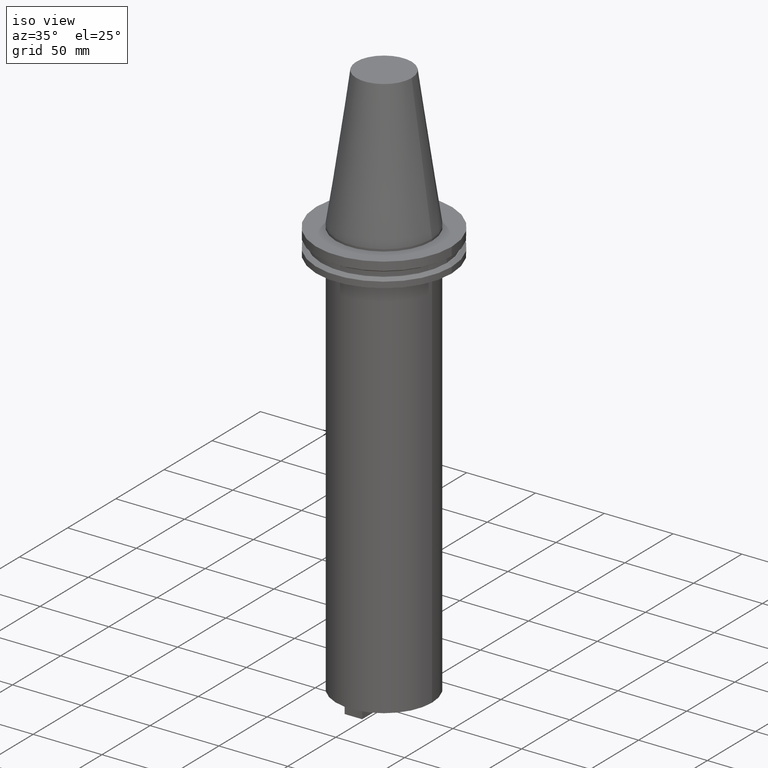
[diagram: clean part render]
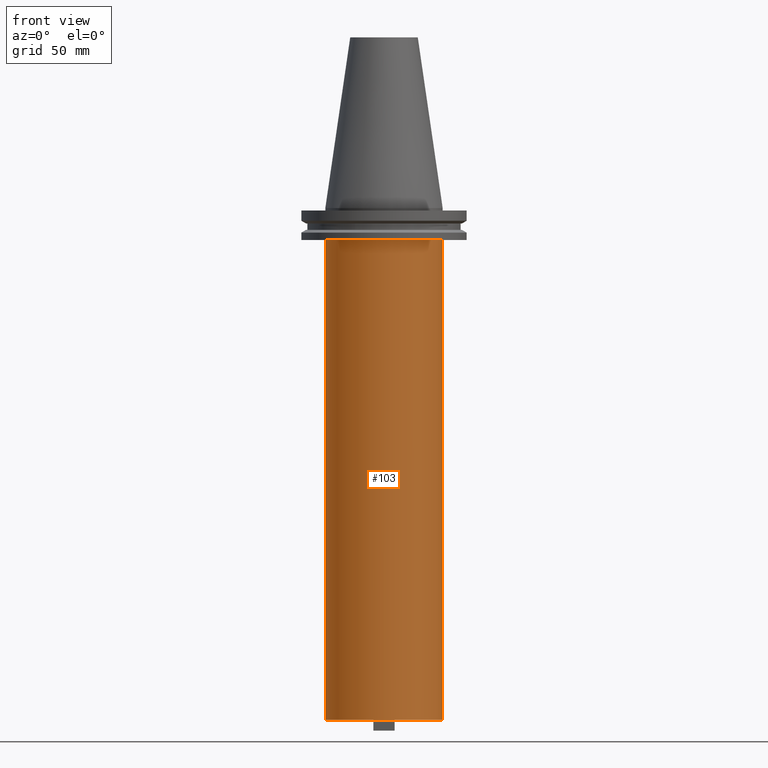
[diagram: tour spotlight — one face highlighted and labeled with its STEP entity id]
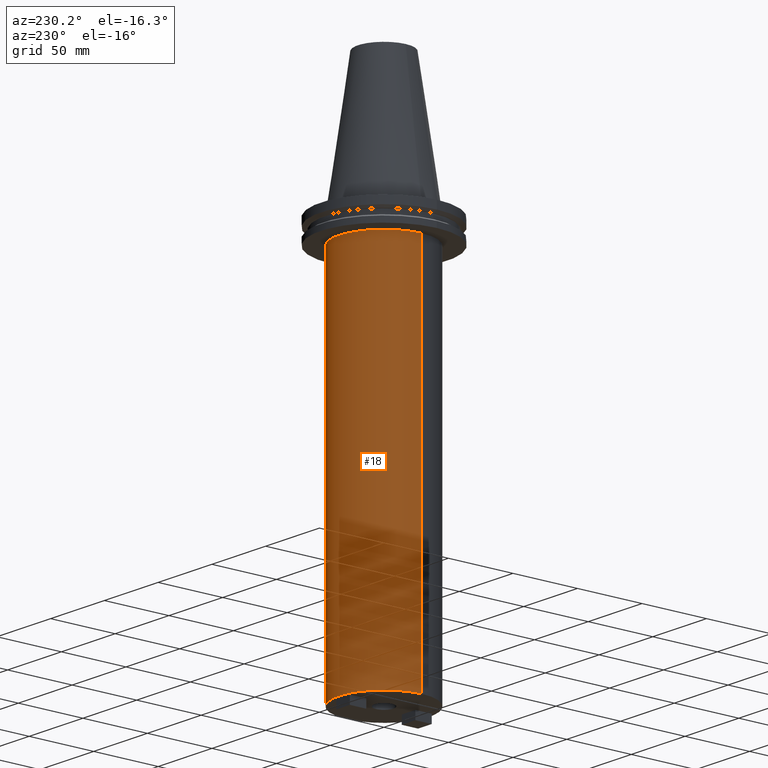
[diagram: tour spotlight — one face highlighted and labeled with its STEP entity id]
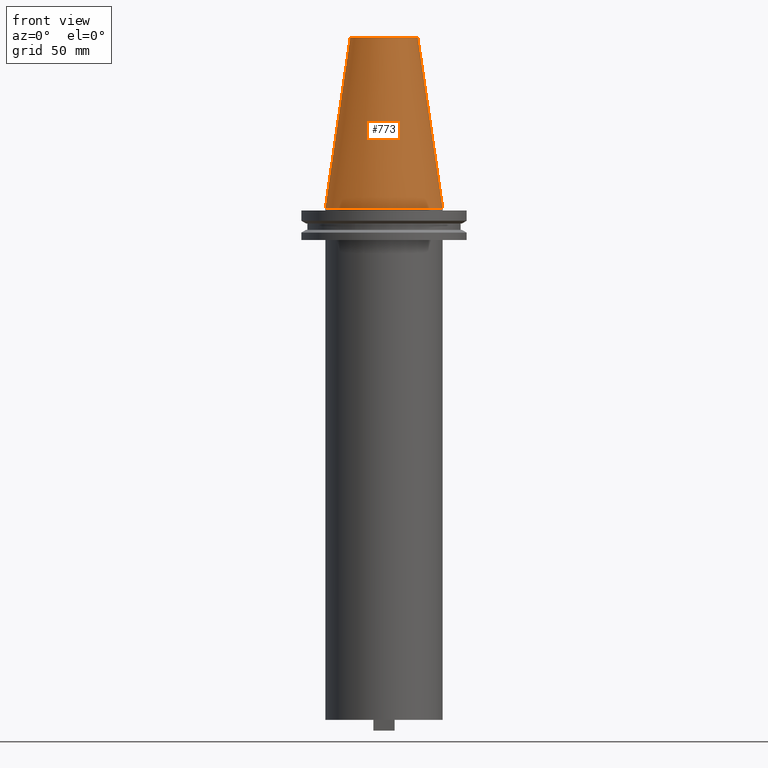
[diagram: tour spotlight — one face highlighted and labeled with its STEP entity id]
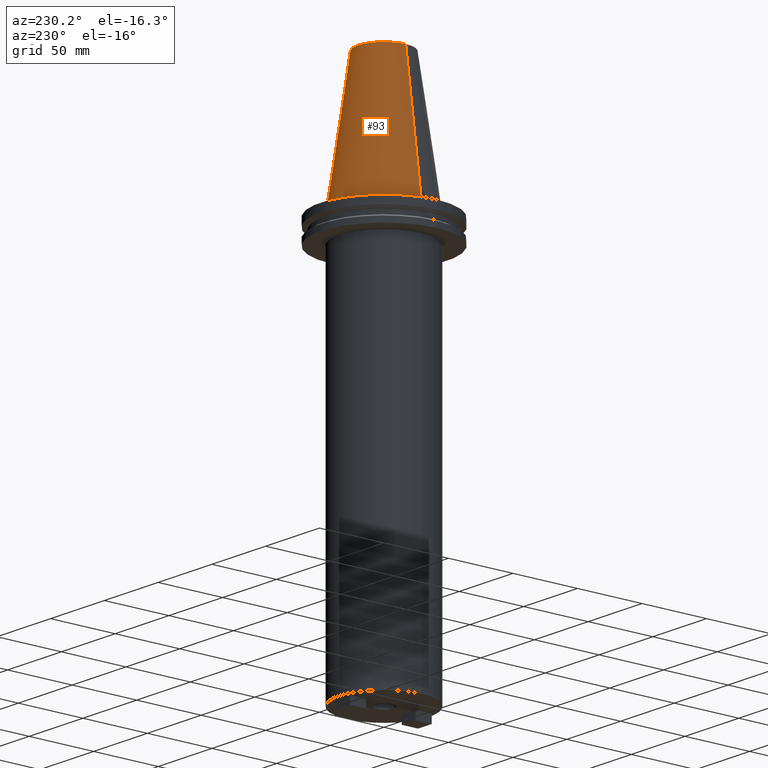
[diagram: tour spotlight — one face highlighted and labeled with its STEP entity id]
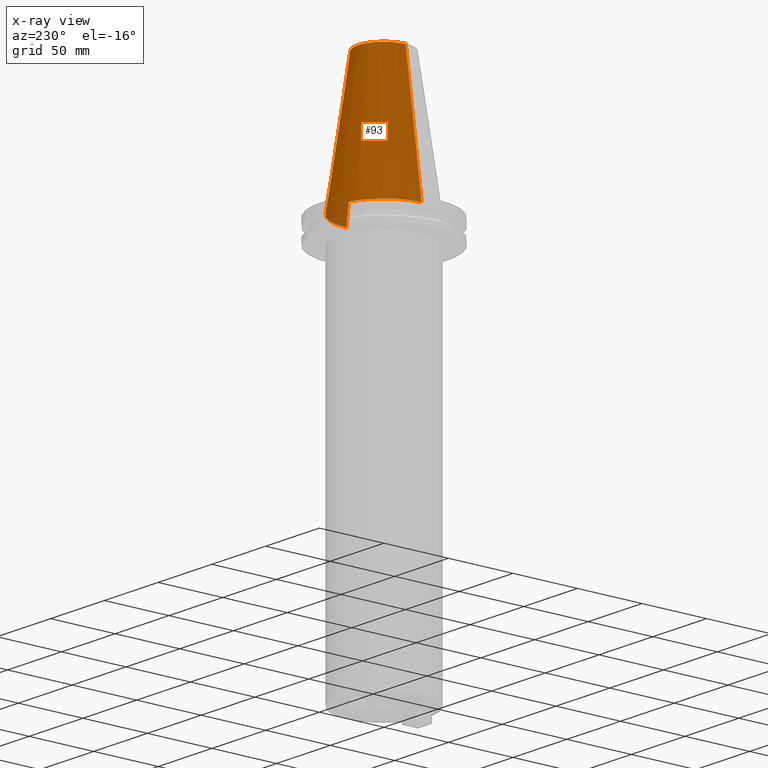
[diagram: x-ray of the same camera — body ghosted, this tour face saturated]
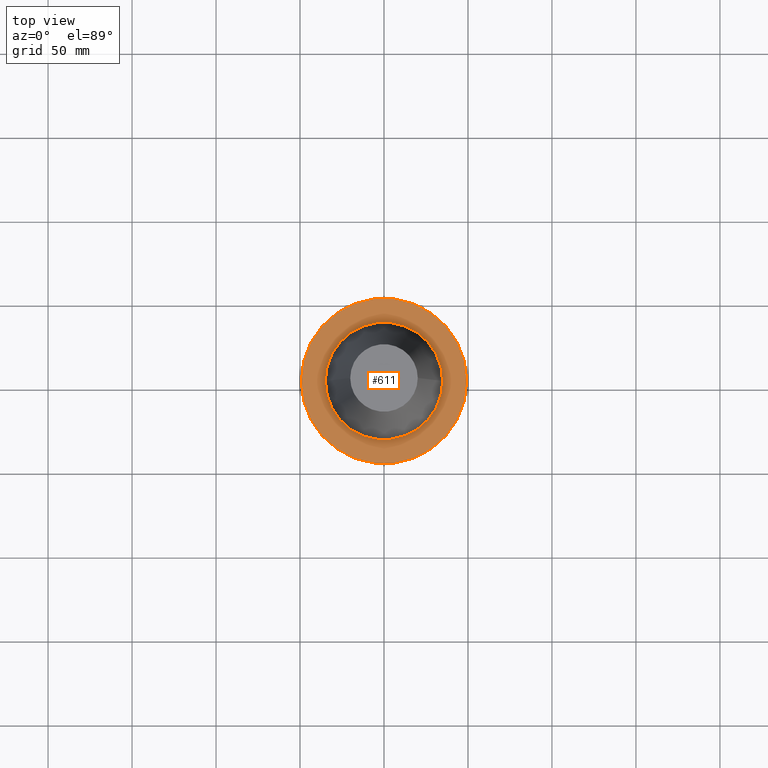
[diagram: tour spotlight — one face highlighted and labeled with its STEP entity id]
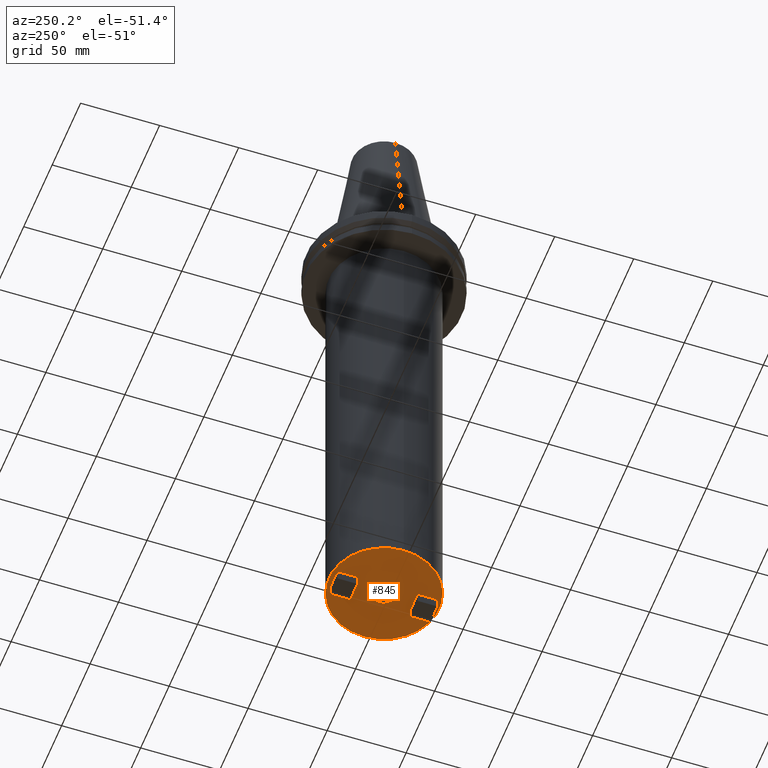
[diagram: tour spotlight — one face highlighted and labeled with its STEP entity id]
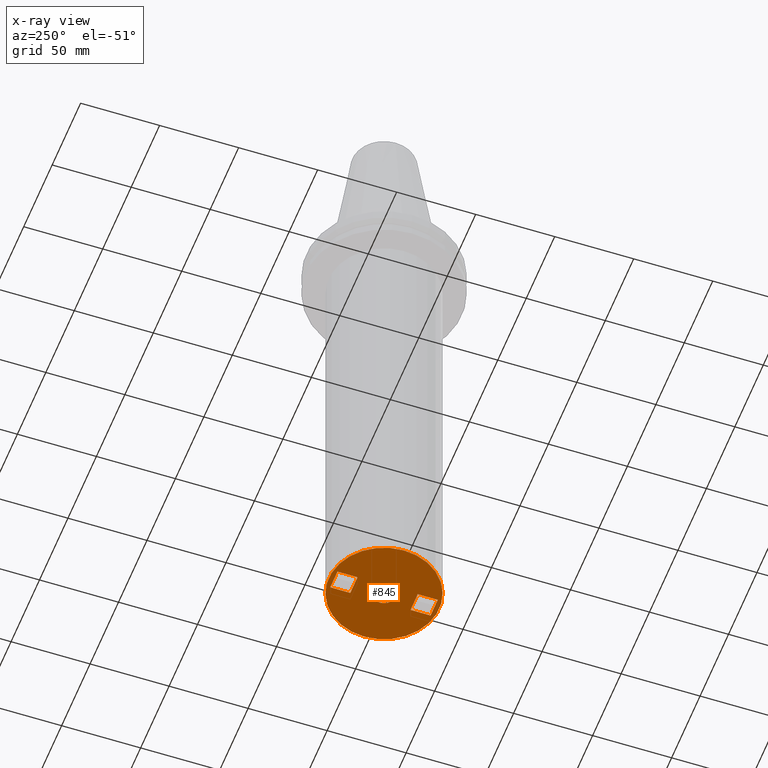
[diagram: x-ray of the same camera — body ghosted, this tour face saturated]
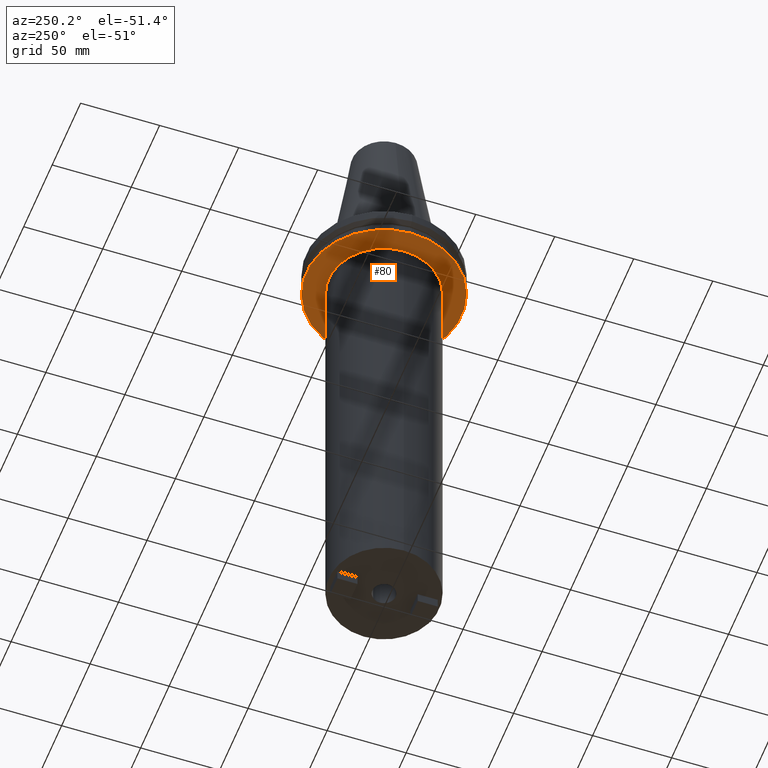
[diagram: tour spotlight — one face highlighted and labeled with its STEP entity id]
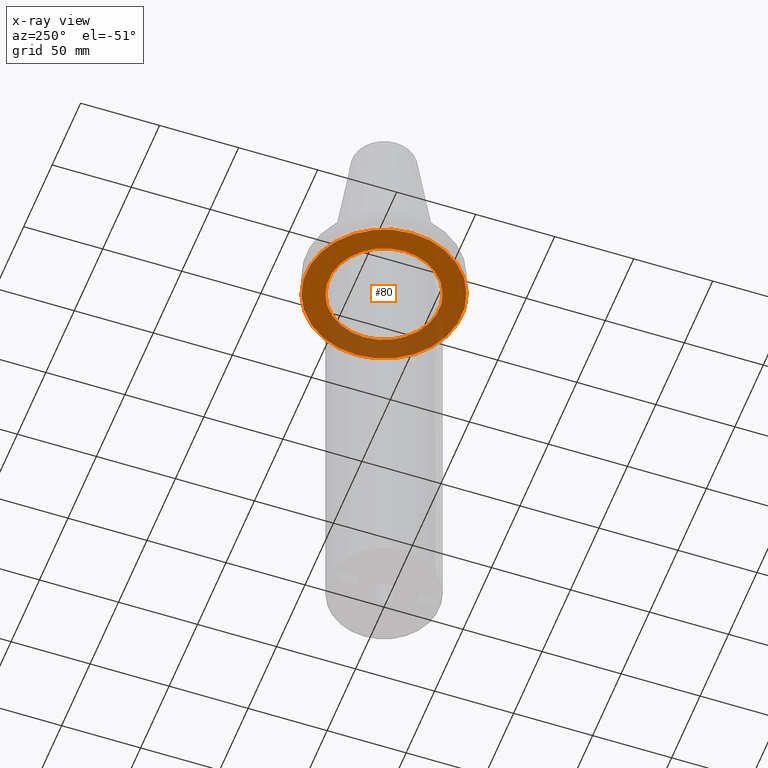
[diagram: x-ray of the same camera — body ghosted, this tour face saturated]
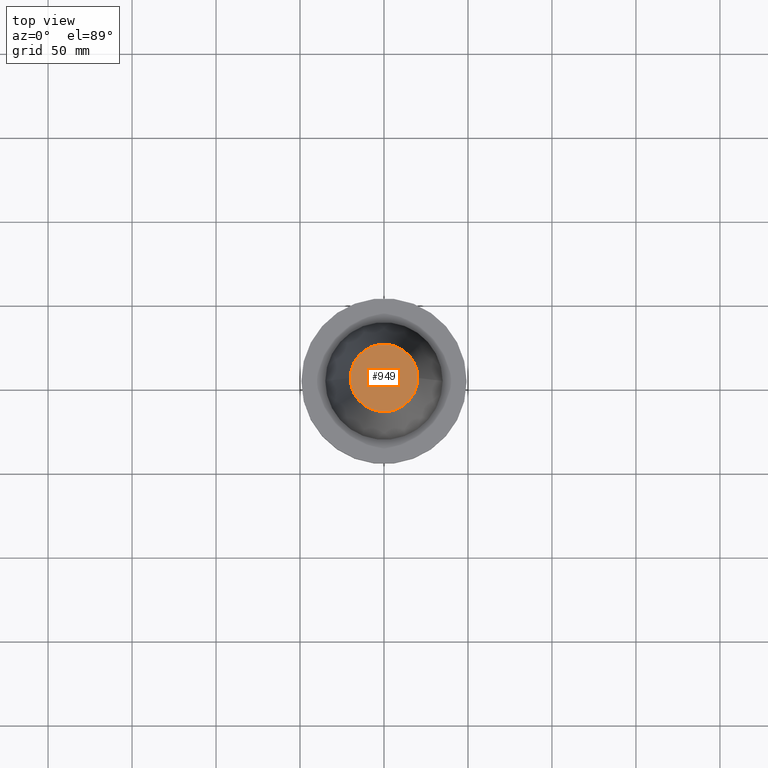
[diagram: tour spotlight — one face highlighted and labeled with its STEP entity id]
A machine part: a face-by-face anatomy tour. The part has 35 B-rep faces; the first image is the clean iso view, then the 8 largest visible faces are spotlighted one at a time (largest first), each with its STEP entity span.

Face 1 — front view, entity #103. In plain terms, the highlighted cylindrical surface (partial cylindrical patch) has radius 34.925 mm, axis along (-0, -0, 1).
Definition (entity closure, byte-faithful):
#15 = ORIENTED_EDGE ( 'NONE', *, *, #243, .T. ) ;
#17 = DIRECTION ( 'NONE',  ( 1.000000000000000000, 0.000000000000000000, 0.000000000000000000 ) ) ;
#33 = AXIS2_PLACEMENT_3D ( 'NONE', #640, #871, #175 ) ;
#57 = VERTEX_POINT ( 'NONE', #567 ) ;
#86 = VECTOR ( 'NONE', #448, 1000.000000000000000 ) ;
#103 = ADVANCED_FACE ( 'NONE', ( #878 ), #391, .T. ) ;
#123 = CARTESIAN_POINT ( 'NONE',  ( 0.000000000000000000, 0.000000000000000000, -304.8000000000000682 ) ) ;
#162 = VERTEX_POINT ( 'NONE', #862 ) ;
#175 = DIRECTION ( 'NONE',  ( 1.000000000000000000, 0.000000000000000000, 0.000000000000000000 ) ) ;
#176 = CARTESIAN_POINT ( 'NONE',  ( -34.92499999999999716, 4.277078946022130887E-15, -19.04999999999999716 ) ) ;
#184 = DIRECTION ( 'NONE',  ( -0.000000000000000000, -0.000000000000000000, 1.000000000000000000 ) ) ;
#185 = ORIENTED_EDGE ( 'NONE', *, *, #738, .F. ) ;
#243 = EDGE_CURVE ( 'NONE', #57, #646, #295, .T. ) ;
#295 = LINE ( 'NONE', #491, #86 ) ;
#385 = AXIS2_PLACEMENT_3D ( 'NONE', #123, #689, #765 ) ;
#391 = CYLINDRICAL_SURFACE ( 'NONE', #33, 34.92499999999999716 ) ;
#410 = CARTESIAN_POINT ( 'NONE',  ( 0.000000000000000000, 0.000000000000000000, -19.04999999999999716 ) ) ;
#418 = CIRCLE ( 'NONE', #726, 34.92499999999999716 ) ;
#441 = EDGE_CURVE ( 'NONE', #162, #57, #631, .T. ) ;
#445 = EDGE_LOOP ( 'NONE', ( #185, #958, #15, #659 ) ) ;
#448 = DIRECTION ( 'NONE',  ( -0.000000000000000000, -0.000000000000000000, 1.000000000000000000 ) ) ;
#491 = CARTESIAN_POINT ( 'NONE',  ( 34.92499999999999716, 0.000000000000000000, 101.5999999999999943 ) ) ;
#567 = CARTESIAN_POINT ( 'NONE',  ( 34.92499999999999716, 0.000000000000000000, -304.8000000000000682 ) ) ;
#568 = LINE ( 'NONE', #716, #889 ) ;
#631 = CIRCLE ( 'NONE', #385, 34.92499999999999716 ) ;
#640 = CARTESIAN_POINT ( 'NONE',  ( 0.000000000000000000, 0.000000000000000000, 101.5999999999999943 ) ) ;
#646 = VERTEX_POINT ( 'NONE', #863 ) ;
#659 = ORIENTED_EDGE ( 'NONE', *, *, #733, .F. ) ;
#689 = DIRECTION ( 'NONE',  ( -0.000000000000000000, -0.000000000000000000, 1.000000000000000000 ) ) ;
#716 = CARTESIAN_POINT ( 'NONE',  ( -34.92499999999999716, 4.277078946022130887E-15, 101.5999999999999943 ) ) ;
#726 = AXIS2_PLACEMENT_3D ( 'NONE', #410, #954, #17 ) ;
#733 = EDGE_CURVE ( 'NONE', #799, #646, #418, .T. ) ;
#738 = EDGE_CURVE ( 'NONE', #162, #799, #568, .T. ) ;
#765 = DIRECTION ( 'NONE',  ( 1.000000000000000000, 0.000000000000000000, 0.000000000000000000 ) ) ;
#799 = VERTEX_POINT ( 'NONE', #176 ) ;
#862 = CARTESIAN_POINT ( 'NONE',  ( -34.92499999999999716, 4.277078946022130887E-15, -304.8000000000000682 ) ) ;
#863 = CARTESIAN_POINT ( 'NONE',  ( 34.92499999999999716, 0.000000000000000000, -19.04999999999999716 ) ) ;
#871 = DIRECTION ( 'NONE',  ( -0.000000000000000000, -0.000000000000000000, 1.000000000000000000 ) ) ;
#878 = FACE_OUTER_BOUND ( 'NONE', #445, .T. ) ;
#889 = VECTOR ( 'NONE', #184, 1000.000000000000000 ) ;
#954 = DIRECTION ( 'NONE',  ( -0.000000000000000000, -0.000000000000000000, 1.000000000000000000 ) ) ;
#958 = ORIENTED_EDGE ( 'NONE', *, *, #441, .T. ) ;

Face 2 — auxiliary view, entity #18. In plain terms, the highlighted cylindrical surface (partial cylindrical patch) has radius 34.925 mm, axis along (-0, -0, 1).
Definition (entity closure, byte-faithful):
#18 = ADVANCED_FACE ( 'NONE', ( #601 ), #764, .T. ) ;
#57 = VERTEX_POINT ( 'NONE', #567 ) ;
#86 = VECTOR ( 'NONE', #448, 1000.000000000000000 ) ;
#146 = DIRECTION ( 'NONE',  ( -0.000000000000000000, -0.000000000000000000, 1.000000000000000000 ) ) ;
#153 = AXIS2_PLACEMENT_3D ( 'NONE', #848, #146, #632 ) ;
#162 = VERTEX_POINT ( 'NONE', #862 ) ;
#170 = ORIENTED_EDGE ( 'NONE', *, *, #738, .T. ) ;
#176 = CARTESIAN_POINT ( 'NONE',  ( -34.92499999999999716, 4.277078946022130887E-15, -19.04999999999999716 ) ) ;
#184 = DIRECTION ( 'NONE',  ( -0.000000000000000000, -0.000000000000000000, 1.000000000000000000 ) ) ;
#243 = EDGE_CURVE ( 'NONE', #57, #646, #295, .T. ) ;
#295 = LINE ( 'NONE', #491, #86 ) ;
#333 = EDGE_CURVE ( 'NONE', #57, #162, #968, .T. ) ;
#374 = DIRECTION ( 'NONE',  ( -0.000000000000000000, -0.000000000000000000, 1.000000000000000000 ) ) ;
#376 = CARTESIAN_POINT ( 'NONE',  ( 0.000000000000000000, 0.000000000000000000, -304.8000000000000682 ) ) ;
#384 = CARTESIAN_POINT ( 'NONE',  ( 0.000000000000000000, 0.000000000000000000, 101.5999999999999943 ) ) ;
#448 = DIRECTION ( 'NONE',  ( -0.000000000000000000, -0.000000000000000000, 1.000000000000000000 ) ) ;
#459 = DIRECTION ( 'NONE',  ( 1.000000000000000000, 0.000000000000000000, 0.000000000000000000 ) ) ;
#491 = CARTESIAN_POINT ( 'NONE',  ( 34.92499999999999716, 0.000000000000000000, 101.5999999999999943 ) ) ;
#528 = DIRECTION ( 'NONE',  ( -0.000000000000000000, -0.000000000000000000, 1.000000000000000000 ) ) ;
#540 = ORIENTED_EDGE ( 'NONE', *, *, #333, .T. ) ;
#567 = CARTESIAN_POINT ( 'NONE',  ( 34.92499999999999716, 0.000000000000000000, -304.8000000000000682 ) ) ;
#568 = LINE ( 'NONE', #716, #889 ) ;
#576 = AXIS2_PLACEMENT_3D ( 'NONE', #384, #374, #688 ) ;
#601 = FACE_OUTER_BOUND ( 'NONE', #638, .T. ) ;
#632 = DIRECTION ( 'NONE',  ( 1.000000000000000000, 0.000000000000000000, 0.000000000000000000 ) ) ;
#638 = EDGE_LOOP ( 'NONE', ( #540, #170, #978, #649 ) ) ;
#646 = VERTEX_POINT ( 'NONE', #863 ) ;
#649 = ORIENTED_EDGE ( 'NONE', *, *, #243, .F. ) ;
#680 = CIRCLE ( 'NONE', #153, 34.92499999999999716 ) ;
#688 = DIRECTION ( 'NONE',  ( 1.000000000000000000, 0.000000000000000000, 0.000000000000000000 ) ) ;
#699 = EDGE_CURVE ( 'NONE', #646, #799, #680, .T. ) ;
#716 = CARTESIAN_POINT ( 'NONE',  ( -34.92499999999999716, 4.277078946022130887E-15, 101.5999999999999943 ) ) ;
#738 = EDGE_CURVE ( 'NONE', #162, #799, #568, .T. ) ;
#764 = CYLINDRICAL_SURFACE ( 'NONE', #576, 34.92499999999999716 ) ;
#799 = VERTEX_POINT ( 'NONE', #176 ) ;
#848 = CARTESIAN_POINT ( 'NONE',  ( 0.000000000000000000, 0.000000000000000000, -19.04999999999999716 ) ) ;
#862 = CARTESIAN_POINT ( 'NONE',  ( -34.92499999999999716, 4.277078946022130887E-15, -304.8000000000000682 ) ) ;
#863 = CARTESIAN_POINT ( 'NONE',  ( 34.92499999999999716, 0.000000000000000000, -19.04999999999999716 ) ) ;
#888 = AXIS2_PLACEMENT_3D ( 'NONE', #376, #528, #459 ) ;
#889 = VECTOR ( 'NONE', #184, 1000.000000000000000 ) ;
#968 = CIRCLE ( 'NONE', #888, 34.92499999999999716 ) ;
#978 = ORIENTED_EDGE ( 'NONE', *, *, #699, .F. ) ;

Face 3 — front view, entity #773. In plain terms, the highlighted conical surface has half-angle 8.297 deg.
Definition (entity closure, byte-faithful):
#30 = CARTESIAN_POINT ( 'NONE',  ( 0.000000000000000000, 0.000000000000000000, 0.000000000000000000 ) ) ;
#55 = VECTOR ( 'NONE', #201, 999.9999999999998863 ) ;
#131 = CARTESIAN_POINT ( 'NONE',  ( 0.000000000000000000, 0.000000000000000000, 101.5999999999999801 ) ) ;
#165 = FACE_OUTER_BOUND ( 'NONE', #572, .T. ) ;
#190 = ORIENTED_EDGE ( 'NONE', *, *, #447, .F. ) ;
#196 = CARTESIAN_POINT ( 'NONE',  ( 34.92499999999999005, 4.277078946022130098E-15, 0.000000000000000000 ) ) ;
#197 = DIRECTION ( 'NONE',  ( -0.000000000000000000, -0.000000000000000000, 1.000000000000000000 ) ) ;
#201 = DIRECTION ( 'NONE',  ( -0.1443082272672999988, 0.000000000000000000, -0.9895327864921755756 ) ) ;
#266 = CIRCLE ( 'NONE', #432, 20.10819343178871321 ) ;
#292 = EDGE_CURVE ( 'NONE', #657, #951, #266, .T. ) ;
#298 = LINE ( 'NONE', #196, #725 ) ;
#366 = CARTESIAN_POINT ( 'NONE',  ( 20.10819343178871321, 3.369811209154858606E-15, 101.5999999999999801 ) ) ;
#399 = CARTESIAN_POINT ( 'NONE',  ( -20.10819343178871321, 0.000000000000000000, 101.5999999999999801 ) ) ;
#429 = CARTESIAN_POINT ( 'NONE',  ( -34.92499999999999005, 0.000000000000000000, 0.000000000000000000 ) ) ;
#432 = AXIS2_PLACEMENT_3D ( 'NONE', #131, #197, #672 ) ;
#447 = EDGE_CURVE ( 'NONE', #951, #803, #298, .T. ) ;
#451 = AXIS2_PLACEMENT_3D ( 'NONE', #586, #896, #509 ) ;
#457 = VERTEX_POINT ( 'NONE', #429 ) ;
#480 = ORIENTED_EDGE ( 'NONE', *, *, #292, .F. ) ;
#509 = DIRECTION ( 'NONE',  ( 1.000000000000000000, 0.000000000000000000, 0.000000000000000000 ) ) ;
#521 = DIRECTION ( 'NONE',  ( 0.1443082272672999988, 1.767266086135277066E-17, -0.9895327864921755756 ) ) ;
#557 = EDGE_CURVE ( 'NONE', #457, #803, #868, .T. ) ;
#572 = EDGE_LOOP ( 'NONE', ( #190, #480, #653, #964 ) ) ;
#586 = CARTESIAN_POINT ( 'NONE',  ( 0.000000000000000000, 0.000000000000000000, 0.000000000000000000 ) ) ;
#653 = ORIENTED_EDGE ( 'NONE', *, *, #1002, .T. ) ;
#655 = DIRECTION ( 'NONE',  ( 0.000000000000000000, 0.000000000000000000, -1.000000000000000000 ) ) ;
#657 = VERTEX_POINT ( 'NONE', #399 ) ;
#658 = DIRECTION ( 'NONE',  ( -1.000000000000000000, 0.000000000000000000, 0.000000000000000000 ) ) ;
#668 = CARTESIAN_POINT ( 'NONE',  ( -34.92499999999999005, 0.000000000000000000, 0.000000000000000000 ) ) ;
#672 = DIRECTION ( 'NONE',  ( 1.000000000000000000, 0.000000000000000000, 0.000000000000000000 ) ) ;
#725 = VECTOR ( 'NONE', #521, 999.9999999999998863 ) ;
#734 = CARTESIAN_POINT ( 'NONE',  ( 34.92499999999999005, 4.277078946022130098E-15, 0.000000000000000000 ) ) ;
#737 = LINE ( 'NONE', #668, #55 ) ;
#761 = CONICAL_SURFACE ( 'NONE', #777, 34.92499999999999005, 0.1448138465474119452 ) ;
#773 = ADVANCED_FACE ( 'NONE', ( #165 ), #761, .T. ) ;
#777 = AXIS2_PLACEMENT_3D ( 'NONE', #30, #655, #658 ) ;
#803 = VERTEX_POINT ( 'NONE', #734 ) ;
#868 = CIRCLE ( 'NONE', #451, 34.92499999999999005 ) ;
#896 = DIRECTION ( 'NONE',  ( -0.000000000000000000, -0.000000000000000000, 1.000000000000000000 ) ) ;
#951 = VERTEX_POINT ( 'NONE', #366 ) ;
#964 = ORIENTED_EDGE ( 'NONE', *, *, #557, .T. ) ;
#1002 = EDGE_CURVE ( 'NONE', #657, #457, #737, .T. ) ;

Face 4 — auxiliary view, entity #93. An x-ray twin of the same camera follows (body ghosted, this face saturated) — the face is partly hidden behind the body. In plain terms, the highlighted conical surface has half-angle 8.297 deg.
Definition (entity closure, byte-faithful):
#20 = CIRCLE ( 'NONE', #285, 20.10819343178871321 ) ;
#55 = VECTOR ( 'NONE', #201, 999.9999999999998863 ) ;
#76 = DIRECTION ( 'NONE',  ( 0.000000000000000000, 0.000000000000000000, -1.000000000000000000 ) ) ;
#84 = CARTESIAN_POINT ( 'NONE',  ( 0.000000000000000000, 0.000000000000000000, 101.5999999999999801 ) ) ;
#93 = ADVANCED_FACE ( 'NONE', ( #477 ), #922, .T. ) ;
#181 = AXIS2_PLACEMENT_3D ( 'NONE', #859, #76, #865 ) ;
#196 = CARTESIAN_POINT ( 'NONE',  ( 34.92499999999999005, 4.277078946022130098E-15, 0.000000000000000000 ) ) ;
#201 = DIRECTION ( 'NONE',  ( -0.1443082272672999988, 0.000000000000000000, -0.9895327864921755756 ) ) ;
#213 = EDGE_CURVE ( 'NONE', #803, #457, #331, .T. ) ;
#285 = AXIS2_PLACEMENT_3D ( 'NONE', #84, #619, #711 ) ;
#290 = DIRECTION ( 'NONE',  ( -0.000000000000000000, -0.000000000000000000, 1.000000000000000000 ) ) ;
#298 = LINE ( 'NONE', #196, #725 ) ;
#327 = ORIENTED_EDGE ( 'NONE', *, *, #213, .T. ) ;
#331 = CIRCLE ( 'NONE', #383, 34.92499999999999005 ) ;
#366 = CARTESIAN_POINT ( 'NONE',  ( 20.10819343178871321, 3.369811209154858606E-15, 101.5999999999999801 ) ) ;
#383 = AXIS2_PLACEMENT_3D ( 'NONE', #897, #290, #980 ) ;
#399 = CARTESIAN_POINT ( 'NONE',  ( -20.10819343178871321, 0.000000000000000000, 101.5999999999999801 ) ) ;
#429 = CARTESIAN_POINT ( 'NONE',  ( -34.92499999999999005, 0.000000000000000000, 0.000000000000000000 ) ) ;
#447 = EDGE_CURVE ( 'NONE', #951, #803, #298, .T. ) ;
#457 = VERTEX_POINT ( 'NONE', #429 ) ;
#477 = FACE_OUTER_BOUND ( 'NONE', #913, .T. ) ;
#521 = DIRECTION ( 'NONE',  ( 0.1443082272672999988, 1.767266086135277066E-17, -0.9895327864921755756 ) ) ;
#561 = ORIENTED_EDGE ( 'NONE', *, *, #600, .F. ) ;
#600 = EDGE_CURVE ( 'NONE', #951, #657, #20, .T. ) ;
#619 = DIRECTION ( 'NONE',  ( -0.000000000000000000, -0.000000000000000000, 1.000000000000000000 ) ) ;
#622 = ORIENTED_EDGE ( 'NONE', *, *, #1002, .F. ) ;
#657 = VERTEX_POINT ( 'NONE', #399 ) ;
#668 = CARTESIAN_POINT ( 'NONE',  ( -34.92499999999999005, 0.000000000000000000, 0.000000000000000000 ) ) ;
#711 = DIRECTION ( 'NONE',  ( 1.000000000000000000, 0.000000000000000000, 0.000000000000000000 ) ) ;
#725 = VECTOR ( 'NONE', #521, 999.9999999999998863 ) ;
#734 = CARTESIAN_POINT ( 'NONE',  ( 34.92499999999999005, 4.277078946022130098E-15, 0.000000000000000000 ) ) ;
#737 = LINE ( 'NONE', #668, #55 ) ;
#803 = VERTEX_POINT ( 'NONE', #734 ) ;
#842 = ORIENTED_EDGE ( 'NONE', *, *, #447, .T. ) ;
#859 = CARTESIAN_POINT ( 'NONE',  ( 0.000000000000000000, 0.000000000000000000, 0.000000000000000000 ) ) ;
#865 = DIRECTION ( 'NONE',  ( -1.000000000000000000, 0.000000000000000000, 0.000000000000000000 ) ) ;
#897 = CARTESIAN_POINT ( 'NONE',  ( 0.000000000000000000, 0.000000000000000000, 0.000000000000000000 ) ) ;
#913 = EDGE_LOOP ( 'NONE', ( #561, #842, #327, #622 ) ) ;
#922 = CONICAL_SURFACE ( 'NONE', #181, 34.92499999999999005, 0.1448138465474119452 ) ;
#951 = VERTEX_POINT ( 'NONE', #366 ) ;
#980 = DIRECTION ( 'NONE',  ( 1.000000000000000000, 0.000000000000000000, 0.000000000000000000 ) ) ;
#1002 = EDGE_CURVE ( 'NONE', #657, #457, #737, .T. ) ;

Face 5 — top view, entity #611. In plain terms, the highlighted planar face has unit normal (0, 0, -1).
Definition (entity closure, byte-faithful):
#13 = ORIENTED_EDGE ( 'NONE', *, *, #782, .T. ) ;
#24 = DIRECTION ( 'NONE',  ( 1.000000000000000000, 0.000000000000000000, 0.000000000000000000 ) ) ;
#49 = DIRECTION ( 'NONE',  ( -0.000000000000000000, -0.000000000000000000, 1.000000000000000000 ) ) ;
#65 = PLANE ( 'NONE',  #987 ) ;
#91 = ORIENTED_EDGE ( 'NONE', *, *, #802, .T. ) ;
#98 = AXIS2_PLACEMENT_3D ( 'NONE', #670, #979, #217 ) ;
#100 = CIRCLE ( 'NONE', #402, 49.21499999999999631 ) ;
#101 = DIRECTION ( 'NONE',  ( 1.000000000000000000, 0.000000000000000000, 0.000000000000000000 ) ) ;
#161 = DIRECTION ( 'NONE',  ( 0.000000000000000000, 0.000000000000000000, -1.000000000000000000 ) ) ;
#217 = DIRECTION ( 'NONE',  ( 1.000000000000000000, 0.000000000000000000, 0.000000000000000000 ) ) ;
#250 = CIRCLE ( 'NONE', #433, 49.21499999999999631 ) ;
#255 = VERTEX_POINT ( 'NONE', #281 ) ;
#258 = CARTESIAN_POINT ( 'NONE',  ( 0.000000000000000000, 0.000000000000000000, -1.499999999999987566 ) ) ;
#281 = CARTESIAN_POINT ( 'NONE',  ( -34.92499999999999005, 4.277078946022130098E-15, -1.499999999999987566 ) ) ;
#287 = VERTEX_POINT ( 'NONE', #587 ) ;
#315 = DIRECTION ( 'NONE',  ( -1.000000000000000000, 0.000000000000000000, -0.000000000000000000 ) ) ;
#342 = DIRECTION ( 'NONE',  ( -0.000000000000000000, -0.000000000000000000, 1.000000000000000000 ) ) ;
#402 = AXIS2_PLACEMENT_3D ( 'NONE', #258, #342, #101 ) ;
#415 = EDGE_CURVE ( 'NONE', #558, #255, #416, .T. ) ;
#416 = CIRCLE ( 'NONE', #98, 34.92499999999999005 ) ;
#433 = AXIS2_PLACEMENT_3D ( 'NONE', #560, #801, #24 ) ;
#440 = CARTESIAN_POINT ( 'NONE',  ( 0.000000000000000000, 0.000000000000000000, -1.499999999999987566 ) ) ;
#473 = EDGE_CURVE ( 'NONE', #255, #558, #1003, .T. ) ;
#515 = EDGE_LOOP ( 'NONE', ( #887, #566 ) ) ;
#536 = EDGE_LOOP ( 'NONE', ( #91, #13 ) ) ;
#551 = FACE_BOUND ( 'NONE', #515, .T. ) ;
#558 = VERTEX_POINT ( 'NONE', #749 ) ;
#560 = CARTESIAN_POINT ( 'NONE',  ( 0.000000000000000000, 0.000000000000000000, -1.499999999999987566 ) ) ;
#566 = ORIENTED_EDGE ( 'NONE', *, *, #473, .F. ) ;
#587 = CARTESIAN_POINT ( 'NONE',  ( 49.21499999999999631, 0.000000000000000000, -1.499999999999987566 ) ) ;
#591 = VERTEX_POINT ( 'NONE', #944 ) ;
#611 = ADVANCED_FACE ( 'NONE', ( #551, #769 ), #65, .F. ) ;
#614 = AXIS2_PLACEMENT_3D ( 'NONE', #440, #49, #920 ) ;
#670 = CARTESIAN_POINT ( 'NONE',  ( 0.000000000000000000, 0.000000000000000000, -1.499999999999987566 ) ) ;
#749 = CARTESIAN_POINT ( 'NONE',  ( 34.92499999999999005, 0.000000000000000000, -1.499999999999987566 ) ) ;
#769 = FACE_OUTER_BOUND ( 'NONE', #536, .T. ) ;
#782 = EDGE_CURVE ( 'NONE', #591, #287, #250, .T. ) ;
#801 = DIRECTION ( 'NONE',  ( -0.000000000000000000, -0.000000000000000000, 1.000000000000000000 ) ) ;
#802 = EDGE_CURVE ( 'NONE', #287, #591, #100, .T. ) ;
#887 = ORIENTED_EDGE ( 'NONE', *, *, #415, .F. ) ;
#920 = DIRECTION ( 'NONE',  ( 1.000000000000000000, 0.000000000000000000, 0.000000000000000000 ) ) ;
#944 = CARTESIAN_POINT ( 'NONE',  ( -49.21499999999999631, 6.027099222003697826E-15, -1.499999999999987566 ) ) ;
#979 = DIRECTION ( 'NONE',  ( -0.000000000000000000, -0.000000000000000000, 1.000000000000000000 ) ) ;
#987 = AXIS2_PLACEMENT_3D ( 'NONE', #1009, #161, #315 ) ;
#1003 = CIRCLE ( 'NONE', #614, 34.92499999999999005 ) ;
#1009 = CARTESIAN_POINT ( 'NONE',  ( 0.000000000000000000, 49.21499999999999631, -1.499999999999992895 ) ) ;

Face 6 — auxiliary view, entity #845. An x-ray twin of the same camera follows (body ghosted, this face saturated) — the face is partly hidden behind the body. In plain terms, the highlighted planar face has unit normal (0, -0, 1).
Definition (entity closure, byte-faithful):
#9 = VERTEX_POINT ( 'NONE', #59 ) ;
#11 = CARTESIAN_POINT ( 'NONE',  ( 0.000000000000000000, 0.000000000000000000, -304.8000000000000114 ) ) ;
#29 = EDGE_CURVE ( 'NONE', #796, #605, #301, .T. ) ;
#40 = CARTESIAN_POINT ( 'NONE',  ( 6.349999999999994316, 19.05000000000000426, -304.8000000000000682 ) ) ;
#47 = DIRECTION ( 'NONE',  ( -1.365923996832131116E-16, 1.000000000000000000, -0.000000000000000000 ) ) ;
#48 = EDGE_LOOP ( 'NONE', ( #652, #461, #378, #762 ) ) ;
#57 = VERTEX_POINT ( 'NONE', #567 ) ;
#59 = CARTESIAN_POINT ( 'NONE',  ( -6.350000000000003197, 19.04999999999999716, -304.8000000000000682 ) ) ;
#74 = CARTESIAN_POINT ( 'NONE',  ( 6.349999999999984546, -31.75000000000001421, -304.8000000000000682 ) ) ;
#78 = ORIENTED_EDGE ( 'NONE', *, *, #29, .F. ) ;
#85 = VECTOR ( 'NONE', #398, 1000.000000000000000 ) ;
#87 = VECTOR ( 'NONE', #97, 1000.000000000000000 ) ;
#94 = DIRECTION ( 'NONE',  ( -1.000000000000000000, 0.000000000000000000, 0.000000000000000000 ) ) ;
#97 = DIRECTION ( 'NONE',  ( 1.365923996832132102E-16, -1.000000000000000000, 0.000000000000000000 ) ) ;
#99 = VERTEX_POINT ( 'NONE', #952 ) ;
#114 = CARTESIAN_POINT ( 'NONE',  ( -6.350000000000004974, 31.75000000000000000, -304.8000000000000682 ) ) ;
#116 = ORIENTED_EDGE ( 'NONE', *, *, #748, .F. ) ;
#123 = CARTESIAN_POINT ( 'NONE',  ( 0.000000000000000000, 0.000000000000000000, -304.8000000000000682 ) ) ;
#142 = DIRECTION ( 'NONE',  ( 1.365923996832130130E-16, 1.000000000000000000, 0.000000000000000000 ) ) ;
#144 = CARTESIAN_POINT ( 'NONE',  ( 6.349999999999992539, 31.75000000000000000, -304.8000000000000682 ) ) ;
#145 = ORIENTED_EDGE ( 'NONE', *, *, #333, .F. ) ;
#150 = EDGE_CURVE ( 'NONE', #344, #99, #543, .T. ) ;
#158 = EDGE_CURVE ( 'NONE', #99, #344, #819, .T. ) ;
#162 = VERTEX_POINT ( 'NONE', #862 ) ;
#168 = EDGE_CURVE ( 'NONE', #605, #992, #544, .T. ) ;
#174 = ORIENTED_EDGE ( 'NONE', *, *, #150, .T. ) ;
#246 = FACE_BOUND ( 'NONE', #814, .T. ) ;
#274 = VERTEX_POINT ( 'NONE', #40 ) ;
#283 = VECTOR ( 'NONE', #142, 1000.000000000000000 ) ;
#291 = DIRECTION ( 'NONE',  ( -1.000000000000000000, -5.463695987328527423E-16, 0.000000000000000000 ) ) ;
#297 = ORIENTED_EDGE ( 'NONE', *, *, #168, .F. ) ;
#300 = AXIS2_PLACEMENT_3D ( 'NONE', #11, #325, #788 ) ;
#301 = LINE ( 'NONE', #830, #283 ) ;
#310 = CARTESIAN_POINT ( 'NONE',  ( -7.340000000000006075, 8.988907505741579754E-16, -304.8000000000000114 ) ) ;
#311 = EDGE_CURVE ( 'NONE', #974, #351, #905, .T. ) ;
#325 = DIRECTION ( 'NONE',  ( -0.000000000000000000, -0.000000000000000000, 1.000000000000000000 ) ) ;
#333 = EDGE_CURVE ( 'NONE', #57, #162, #968, .T. ) ;
#340 = EDGE_LOOP ( 'NONE', ( #145, #791 ) ) ;
#344 = VERTEX_POINT ( 'NONE', #310 ) ;
#351 = VERTEX_POINT ( 'NONE', #144 ) ;
#376 = CARTESIAN_POINT ( 'NONE',  ( 0.000000000000000000, 0.000000000000000000, -304.8000000000000682 ) ) ;
#378 = ORIENTED_EDGE ( 'NONE', *, *, #816, .F. ) ;
#385 = AXIS2_PLACEMENT_3D ( 'NONE', #123, #689, #765 ) ;
#395 = ORIENTED_EDGE ( 'NONE', *, *, #396, .F. ) ;
#396 = EDGE_CURVE ( 'NONE', #992, #597, #527, .T. ) ;
#398 = DIRECTION ( 'NONE',  ( 1.000000000000000000, -1.092739197465706471E-15, -0.000000000000000000 ) ) ;
#420 = LINE ( 'NONE', #804, #872 ) ;
#427 = CARTESIAN_POINT ( 'NONE',  ( 6.349999999999984546, -19.05000000000001137, -304.8000000000000682 ) ) ;
#441 = EDGE_CURVE ( 'NONE', #162, #57, #631, .T. ) ;
#450 = EDGE_LOOP ( 'NONE', ( #579, #174 ) ) ;
#458 = CARTESIAN_POINT ( 'NONE',  ( -6.350000000000003197, -19.04999999999999716, -304.8000000000000682 ) ) ;
#459 = DIRECTION ( 'NONE',  ( 1.000000000000000000, 0.000000000000000000, 0.000000000000000000 ) ) ;
#461 = ORIENTED_EDGE ( 'NONE', *, *, #923, .F. ) ;
#470 = CARTESIAN_POINT ( 'NONE',  ( 6.349999999999984546, -19.05000000000000782, -304.8000000000000682 ) ) ;
#474 = CARTESIAN_POINT ( 'NONE',  ( 0.000000000000000000, 0.000000000000000000, -304.8000000000000114 ) ) ;
#482 = VECTOR ( 'NONE', #828, 1000.000000000000000 ) ;
#495 = DIRECTION ( 'NONE',  ( 0.000000000000000000, -0.000000000000000000, 1.000000000000000000 ) ) ;
#507 = CARTESIAN_POINT ( 'NONE',  ( 6.349999999999994316, 19.05000000000000426, -304.8000000000000682 ) ) ;
#517 = CARTESIAN_POINT ( 'NONE',  ( 6.349999999999992539, 31.75000000000000000, -304.8000000000000682 ) ) ;
#527 = LINE ( 'NONE', #757, #925 ) ;
#528 = DIRECTION ( 'NONE',  ( -0.000000000000000000, -0.000000000000000000, 1.000000000000000000 ) ) ;
#543 = CIRCLE ( 'NONE', #936, 7.340000000000006075 ) ;
#544 = LINE ( 'NONE', #470, #85 ) ;
#550 = DIRECTION ( 'NONE',  ( -0.000000000000000000, -0.000000000000000000, 1.000000000000000000 ) ) ;
#567 = CARTESIAN_POINT ( 'NONE',  ( 34.92499999999999716, 0.000000000000000000, -304.8000000000000682 ) ) ;
#570 = CARTESIAN_POINT ( 'NONE',  ( 0.000000000000000000, 34.92499999999999716, -304.8000000000000682 ) ) ;
#579 = ORIENTED_EDGE ( 'NONE', *, *, #158, .T. ) ;
#580 = DIRECTION ( 'NONE',  ( 1.000000000000000000, 0.000000000000000000, 0.000000000000000000 ) ) ;
#590 = CARTESIAN_POINT ( 'NONE',  ( -6.350000000000004974, 31.75000000000000000, -304.8000000000000682 ) ) ;
#597 = VERTEX_POINT ( 'NONE', #74 ) ;
#604 = LINE ( 'NONE', #507, #904 ) ;
#605 = VERTEX_POINT ( 'NONE', #458 ) ;
#631 = CIRCLE ( 'NONE', #385, 34.92499999999999716 ) ;
#641 = CARTESIAN_POINT ( 'NONE',  ( 6.349999999999992539, 31.75000000000000000, -304.8000000000000682 ) ) ;
#652 = ORIENTED_EDGE ( 'NONE', *, *, #914, .F. ) ;
#689 = DIRECTION ( 'NONE',  ( -0.000000000000000000, -0.000000000000000000, 1.000000000000000000 ) ) ;
#714 = DIRECTION ( 'NONE',  ( 1.000000000000000000, 0.000000000000000000, 0.000000000000000000 ) ) ;
#724 = FACE_BOUND ( 'NONE', #450, .T. ) ;
#729 = LINE ( 'NONE', #641, #87 ) ;
#743 = AXIS2_PLACEMENT_3D ( 'NONE', #570, #495, #580 ) ;
#748 = EDGE_CURVE ( 'NONE', #597, #796, #420, .T. ) ;
#757 = CARTESIAN_POINT ( 'NONE',  ( 6.349999999999984546, -31.75000000000000711, -304.8000000000000682 ) ) ;
#762 = ORIENTED_EDGE ( 'NONE', *, *, #311, .F. ) ;
#765 = DIRECTION ( 'NONE',  ( 1.000000000000000000, 0.000000000000000000, 0.000000000000000000 ) ) ;
#788 = DIRECTION ( 'NONE',  ( 1.000000000000000000, 0.000000000000000000, 0.000000000000000000 ) ) ;
#791 = ORIENTED_EDGE ( 'NONE', *, *, #441, .F. ) ;
#796 = VERTEX_POINT ( 'NONE', #882 ) ;
#798 = PLANE ( 'NONE',  #743 ) ;
#804 = CARTESIAN_POINT ( 'NONE',  ( 6.349999999999984546, -31.75000000000000711, -304.8000000000000682 ) ) ;
#806 = VECTOR ( 'NONE', #47, 1000.000000000000000 ) ;
#814 = EDGE_LOOP ( 'NONE', ( #78, #116, #395, #297 ) ) ;
#816 = EDGE_CURVE ( 'NONE', #351, #274, #729, .T. ) ;
#819 = CIRCLE ( 'NONE', #300, 7.340000000000006075 ) ;
#828 = DIRECTION ( 'NONE',  ( 1.000000000000000000, -0.000000000000000000, -0.000000000000000000 ) ) ;
#830 = CARTESIAN_POINT ( 'NONE',  ( -6.350000000000004974, -31.75000000000000711, -304.8000000000000682 ) ) ;
#845 = ADVANCED_FACE ( 'NONE', ( #886, #948, #724, #246 ), #798, .F. ) ;
#862 = CARTESIAN_POINT ( 'NONE',  ( -34.92499999999999716, 4.277078946022130887E-15, -304.8000000000000682 ) ) ;
#872 = VECTOR ( 'NONE', #94, 1000.000000000000000 ) ;
#882 = CARTESIAN_POINT ( 'NONE',  ( -6.350000000000004974, -31.75000000000000711, -304.8000000000000682 ) ) ;
#886 = FACE_BOUND ( 'NONE', #48, .T. ) ;
#888 = AXIS2_PLACEMENT_3D ( 'NONE', #376, #528, #459 ) ;
#904 = VECTOR ( 'NONE', #291, 1000.000000000000000 ) ;
#905 = LINE ( 'NONE', #517, #482 ) ;
#914 = EDGE_CURVE ( 'NONE', #9, #974, #991, .T. ) ;
#923 = EDGE_CURVE ( 'NONE', #274, #9, #604, .T. ) ;
#925 = VECTOR ( 'NONE', #993, 1000.000000000000000 ) ;
#936 = AXIS2_PLACEMENT_3D ( 'NONE', #474, #550, #714 ) ;
#948 = FACE_OUTER_BOUND ( 'NONE', #340, .T. ) ;
#952 = CARTESIAN_POINT ( 'NONE',  ( 7.340000000000006075, 0.000000000000000000, -304.8000000000000114 ) ) ;
#968 = CIRCLE ( 'NONE', #888, 34.92499999999999716 ) ;
#974 = VERTEX_POINT ( 'NONE', #590 ) ;
#991 = LINE ( 'NONE', #114, #806 ) ;
#992 = VERTEX_POINT ( 'NONE', #427 ) ;
#993 = DIRECTION ( 'NONE',  ( -0.000000000000000000, -1.000000000000000000, -0.000000000000000000 ) ) ;

Face 7 — auxiliary view, entity #80. An x-ray twin of the same camera follows (body ghosted, this face saturated) — the face is partly hidden behind the body. In plain terms, the highlighted planar face has unit normal (0, -0, 1).
Definition (entity closure, byte-faithful):
#17 = DIRECTION ( 'NONE',  ( 1.000000000000000000, 0.000000000000000000, 0.000000000000000000 ) ) ;
#21 = EDGE_LOOP ( 'NONE', ( #589, #177 ) ) ;
#73 = DIRECTION ( 'NONE',  ( 0.000000000000000000, -0.000000000000000000, 1.000000000000000000 ) ) ;
#80 = ADVANCED_FACE ( 'NONE', ( #329, #83 ), #253, .F. ) ;
#83 = FACE_BOUND ( 'NONE', #227, .T. ) ;
#120 = CARTESIAN_POINT ( 'NONE',  ( 0.000000000000000000, 0.000000000000000000, -19.04999999999999716 ) ) ;
#135 = AXIS2_PLACEMENT_3D ( 'NONE', #486, #73, #237 ) ;
#146 = DIRECTION ( 'NONE',  ( -0.000000000000000000, -0.000000000000000000, 1.000000000000000000 ) ) ;
#153 = AXIS2_PLACEMENT_3D ( 'NONE', #848, #146, #632 ) ;
#160 = CARTESIAN_POINT ( 'NONE',  ( -49.21499999999998920, 6.027099222003697037E-15, -19.04999999999999716 ) ) ;
#166 = VERTEX_POINT ( 'NONE', #160 ) ;
#176 = CARTESIAN_POINT ( 'NONE',  ( -34.92499999999999716, 4.277078946022130887E-15, -19.04999999999999716 ) ) ;
#177 = ORIENTED_EDGE ( 'NONE', *, *, #704, .F. ) ;
#227 = EDGE_LOOP ( 'NONE', ( #946, #434 ) ) ;
#232 = CARTESIAN_POINT ( 'NONE',  ( 49.21499999999998920, 0.000000000000000000, -19.04999999999999716 ) ) ;
#237 = DIRECTION ( 'NONE',  ( 1.000000000000000000, 0.000000000000000000, 0.000000000000000000 ) ) ;
#253 = PLANE ( 'NONE',  #135 ) ;
#329 = FACE_OUTER_BOUND ( 'NONE', #21, .T. ) ;
#380 = DIRECTION ( 'NONE',  ( -0.000000000000000000, -0.000000000000000000, 1.000000000000000000 ) ) ;
#386 = DIRECTION ( 'NONE',  ( 1.000000000000000000, 0.000000000000000000, 0.000000000000000000 ) ) ;
#410 = CARTESIAN_POINT ( 'NONE',  ( 0.000000000000000000, 0.000000000000000000, -19.04999999999999716 ) ) ;
#418 = CIRCLE ( 'NONE', #726, 34.92499999999999716 ) ;
#434 = ORIENTED_EDGE ( 'NONE', *, *, #733, .T. ) ;
#486 = CARTESIAN_POINT ( 'NONE',  ( 0.000000000000000000, 49.21499999999998920, -19.04999999999999716 ) ) ;
#498 = CIRCLE ( 'NONE', #634, 49.21499999999998920 ) ;
#548 = AXIS2_PLACEMENT_3D ( 'NONE', #942, #380, #386 ) ;
#589 = ORIENTED_EDGE ( 'NONE', *, *, #892, .F. ) ;
#632 = DIRECTION ( 'NONE',  ( 1.000000000000000000, 0.000000000000000000, 0.000000000000000000 ) ) ;
#634 = AXIS2_PLACEMENT_3D ( 'NONE', #120, #662, #973 ) ;
#646 = VERTEX_POINT ( 'NONE', #863 ) ;
#662 = DIRECTION ( 'NONE',  ( -0.000000000000000000, -0.000000000000000000, 1.000000000000000000 ) ) ;
#680 = CIRCLE ( 'NONE', #153, 34.92499999999999716 ) ;
#699 = EDGE_CURVE ( 'NONE', #646, #799, #680, .T. ) ;
#704 = EDGE_CURVE ( 'NONE', #166, #719, #938, .T. ) ;
#719 = VERTEX_POINT ( 'NONE', #232 ) ;
#726 = AXIS2_PLACEMENT_3D ( 'NONE', #410, #954, #17 ) ;
#733 = EDGE_CURVE ( 'NONE', #799, #646, #418, .T. ) ;
#799 = VERTEX_POINT ( 'NONE', #176 ) ;
#848 = CARTESIAN_POINT ( 'NONE',  ( 0.000000000000000000, 0.000000000000000000, -19.04999999999999716 ) ) ;
#863 = CARTESIAN_POINT ( 'NONE',  ( 34.92499999999999716, 0.000000000000000000, -19.04999999999999716 ) ) ;
#892 = EDGE_CURVE ( 'NONE', #719, #166, #498, .T. ) ;
#938 = CIRCLE ( 'NONE', #548, 49.21499999999998920 ) ;
#942 = CARTESIAN_POINT ( 'NONE',  ( 0.000000000000000000, 0.000000000000000000, -19.04999999999999716 ) ) ;
#946 = ORIENTED_EDGE ( 'NONE', *, *, #699, .T. ) ;
#954 = DIRECTION ( 'NONE',  ( -0.000000000000000000, -0.000000000000000000, 1.000000000000000000 ) ) ;
#973 = DIRECTION ( 'NONE',  ( 1.000000000000000000, 0.000000000000000000, 0.000000000000000000 ) ) ;

Face 8 — top view, entity #949. In plain terms, the highlighted planar face has unit normal (0, 0, -1).
Definition (entity closure, byte-faithful):
#20 = CIRCLE ( 'NONE', #285, 20.10819343178871321 ) ;
#42 = DIRECTION ( 'NONE',  ( -1.000000000000000000, 0.000000000000000000, -0.000000000000000000 ) ) ;
#84 = CARTESIAN_POINT ( 'NONE',  ( 0.000000000000000000, 0.000000000000000000, 101.5999999999999801 ) ) ;
#131 = CARTESIAN_POINT ( 'NONE',  ( 0.000000000000000000, 0.000000000000000000, 101.5999999999999801 ) ) ;
#132 = ORIENTED_EDGE ( 'NONE', *, *, #292, .T. ) ;
#197 = DIRECTION ( 'NONE',  ( -0.000000000000000000, -0.000000000000000000, 1.000000000000000000 ) ) ;
#266 = CIRCLE ( 'NONE', #432, 20.10819343178871321 ) ;
#273 = PLANE ( 'NONE',  #512 ) ;
#285 = AXIS2_PLACEMENT_3D ( 'NONE', #84, #619, #711 ) ;
#292 = EDGE_CURVE ( 'NONE', #657, #951, #266, .T. ) ;
#366 = CARTESIAN_POINT ( 'NONE',  ( 20.10819343178871321, 3.369811209154858606E-15, 101.5999999999999801 ) ) ;
#399 = CARTESIAN_POINT ( 'NONE',  ( -20.10819343178871321, 0.000000000000000000, 101.5999999999999801 ) ) ;
#432 = AXIS2_PLACEMENT_3D ( 'NONE', #131, #197, #672 ) ;
#512 = AXIS2_PLACEMENT_3D ( 'NONE', #912, #525, #42 ) ;
#525 = DIRECTION ( 'NONE',  ( 0.000000000000000000, 0.000000000000000000, -1.000000000000000000 ) ) ;
#585 = EDGE_LOOP ( 'NONE', ( #132, #728 ) ) ;
#600 = EDGE_CURVE ( 'NONE', #951, #657, #20, .T. ) ;
#619 = DIRECTION ( 'NONE',  ( -0.000000000000000000, -0.000000000000000000, 1.000000000000000000 ) ) ;
#657 = VERTEX_POINT ( 'NONE', #399 ) ;
#672 = DIRECTION ( 'NONE',  ( 1.000000000000000000, 0.000000000000000000, 0.000000000000000000 ) ) ;
#711 = DIRECTION ( 'NONE',  ( 1.000000000000000000, 0.000000000000000000, 0.000000000000000000 ) ) ;
#728 = ORIENTED_EDGE ( 'NONE', *, *, #600, .T. ) ;
#755 = FACE_OUTER_BOUND ( 'NONE', #585, .T. ) ;
#912 = CARTESIAN_POINT ( 'NONE',  ( 0.000000000000000000, 20.10819343178871321, 101.5999999999999943 ) ) ;
#949 = ADVANCED_FACE ( 'NONE', ( #755 ), #273, .F. ) ;
#951 = VERTEX_POINT ( 'NONE', #366 ) ;